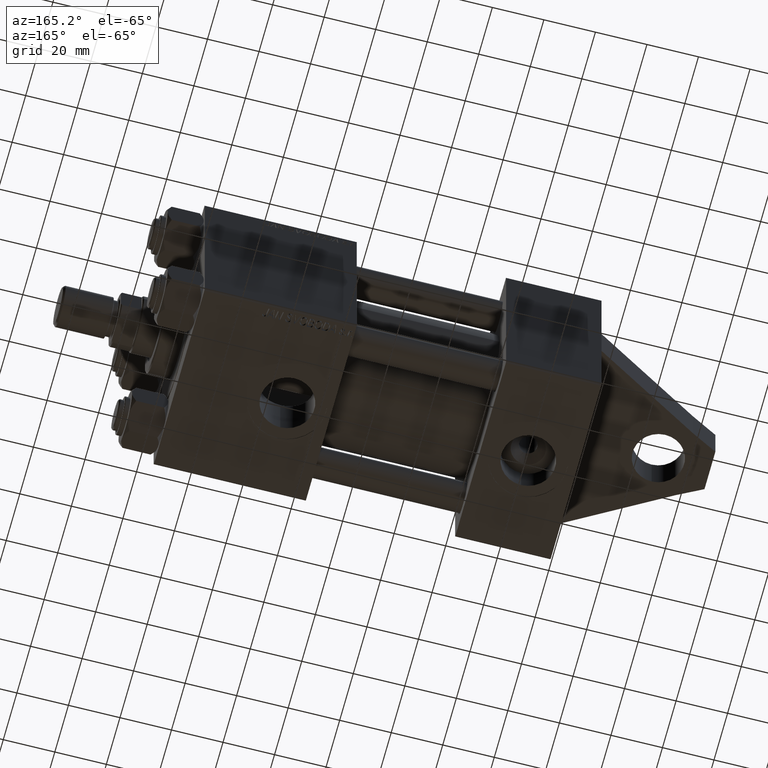
[diagram: clean part render]
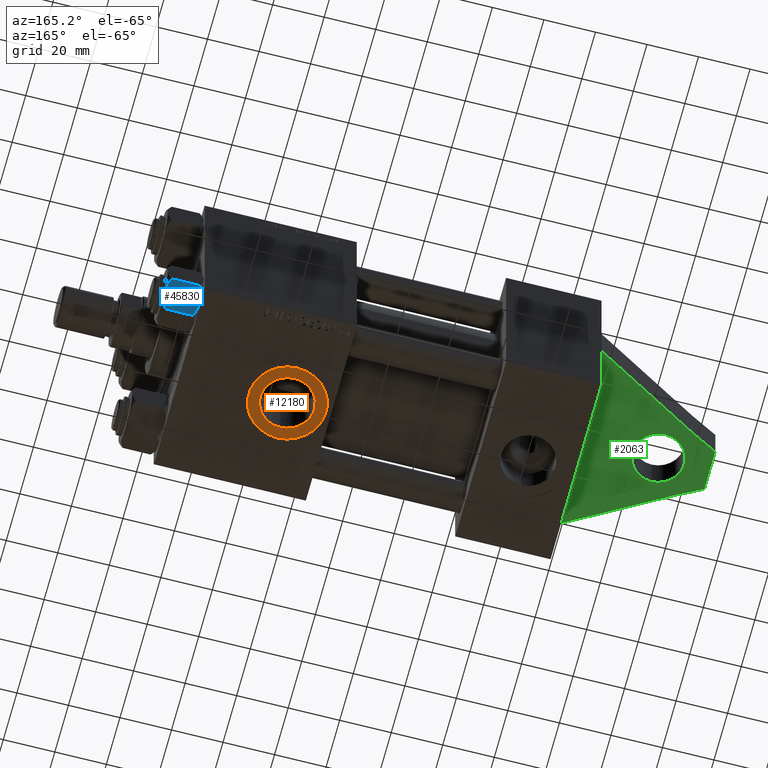
[diagram: same view with three faces highlighted in distinct colors, each labeled with its STEP entity id]
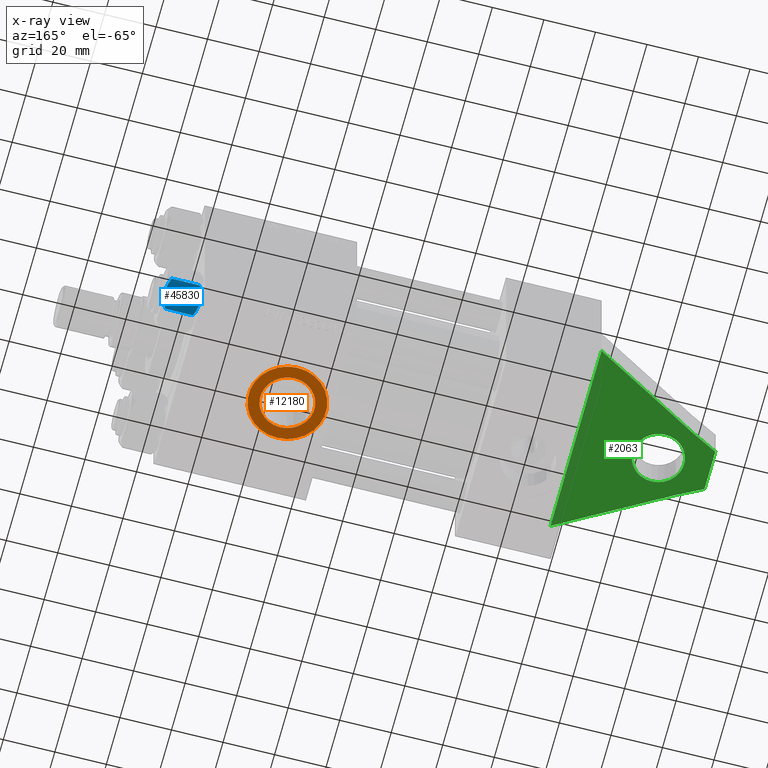
[diagram: x-ray of the same camera — body ghosted, the three highlighted faces saturated]
A machine part, auxiliary view with three faces highlighted in distinct colors.
The next image is the same camera in x-ray (body ghosted, the three faces saturated) — at least one of them is partly hidden behind the body in this view.
Their STEP definitions:

[orange] entity #12180 — the highlighted planar face has unit normal (-0, 0, -1).
#457 = FACE_OUTER_BOUND ( 'NONE', #38729, .T. ) ;
#1296 = CARTESIAN_POINT ( 'NONE',  ( 112.0000000000000000, -37.29999999999999716, 3.486794186713383443E-15 ) ) ;
#2344 = DIRECTION ( 'NONE',  ( 0.000000000000000000, 0.000000000000000000, -1.000000000000000000 ) ) ;
#4085 = CIRCLE ( 'NONE', #20611, 15.00000000000001243 ) ;
#7934 = DIRECTION ( 'NONE',  ( 0.000000000000000000, 0.000000000000000000, -1.000000000000000000 ) ) ;
#8220 = DIRECTION ( 'NONE',  ( 0.000000000000000000, -1.000000000000000000, -8.673617379884036705E-17 ) ) ;
#9294 = DIRECTION ( 'NONE',  ( 0.000000000000000000, -1.000000000000000000, -8.673617379884036705E-17 ) ) ;
#12180 = ADVANCED_FACE ( 'NONE', ( #15490, #457 ), #21868, .T. ) ;
#12237 = DIRECTION ( 'NONE',  ( 0.000000000000000000, -1.000000000000000000, -8.673617379884036705E-17 ) ) ;
#13287 = EDGE_CURVE ( 'NONE', #25275, #17763, #14147, .T. ) ;
#14147 = CIRCLE ( 'NONE', #46398, 10.48000000000000043 ) ;
#15490 = FACE_BOUND ( 'NONE', #20325, .T. ) ;
#17261 = CIRCLE ( 'NONE', #42031, 10.48000000000000043 ) ;
#17763 = VERTEX_POINT ( 'NONE', #26385 ) ;
#18099 = DIRECTION ( 'NONE',  ( 0.000000000000000000, 8.673617379884036705E-17, -1.000000000000000000 ) ) ;
#18683 = CARTESIAN_POINT ( 'NONE',  ( 112.0000000000000000, -37.29999999999999716, 15.00000000000001421 ) ) ;
#18794 = CARTESIAN_POINT ( 'NONE',  ( 112.0000000000000000, -37.29999999999999716, 3.486794186713383443E-15 ) ) ;
#20324 = ORIENTED_EDGE ( 'NONE', *, *, #26542, .F. ) ;
#20325 = EDGE_LOOP ( 'NONE', ( #40205, #20324 ) ) ;
#20611 = AXIS2_PLACEMENT_3D ( 'NONE', #24536, #38403, #41940 ) ;
#21868 = PLANE ( 'NONE',  #23851 ) ;
#23176 = DIRECTION ( 'NONE',  ( 0.000000000000000000, 0.000000000000000000, -1.000000000000000000 ) ) ;
#23851 = AXIS2_PLACEMENT_3D ( 'NONE', #18794, #8220, #18099 ) ;
#23915 = CARTESIAN_POINT ( 'NONE',  ( 112.0000000000000000, -37.29999999999999716, -10.47999999999999687 ) ) ;
#24536 = CARTESIAN_POINT ( 'NONE',  ( 112.0000000000000000, -37.29999999999999716, 3.486794186713383443E-15 ) ) ;
#25275 = VERTEX_POINT ( 'NONE', #23915 ) ;
#25791 = EDGE_CURVE ( 'NONE', #44048, #34156, #46484, .T. ) ;
#26385 = CARTESIAN_POINT ( 'NONE',  ( 112.0000000000000000, -37.29999999999999716, 10.48000000000000398 ) ) ;
#26542 = EDGE_CURVE ( 'NONE', #17763, #25275, #17261, .T. ) ;
#32011 = CARTESIAN_POINT ( 'NONE',  ( 112.0000000000000000, -37.29999999999999716, -15.00000000000000888 ) ) ;
#34156 = VERTEX_POINT ( 'NONE', #32011 ) ;
#34327 = CARTESIAN_POINT ( 'NONE',  ( 112.0000000000000000, -37.29999999999999716, 3.486794186713383443E-15 ) ) ;
#34467 = AXIS2_PLACEMENT_3D ( 'NONE', #34327, #12237, #2344 ) ;
#35798 = ORIENTED_EDGE ( 'NONE', *, *, #42591, .T. ) ;
#36758 = ORIENTED_EDGE ( 'NONE', *, *, #25791, .T. ) ;
#38403 = DIRECTION ( 'NONE',  ( 0.000000000000000000, -1.000000000000000000, -8.673617379884036705E-17 ) ) ;
#38729 = EDGE_LOOP ( 'NONE', ( #35798, #36758 ) ) ;
#40205 = ORIENTED_EDGE ( 'NONE', *, *, #13287, .F. ) ;
#40596 = DIRECTION ( 'NONE',  ( 0.000000000000000000, -1.000000000000000000, -8.673617379884036705E-17 ) ) ;
#41940 = DIRECTION ( 'NONE',  ( 0.000000000000000000, 0.000000000000000000, -1.000000000000000000 ) ) ;
#42031 = AXIS2_PLACEMENT_3D ( 'NONE', #1296, #9294, #23176 ) ;
#42591 = EDGE_CURVE ( 'NONE', #34156, #44048, #4085, .T. ) ;
#44048 = VERTEX_POINT ( 'NONE', #18683 ) ;
#44125 = CARTESIAN_POINT ( 'NONE',  ( 112.0000000000000000, -37.29999999999999716, 3.486794186713383443E-15 ) ) ;
#46398 = AXIS2_PLACEMENT_3D ( 'NONE', #44125, #40596, #7934 ) ;
#46484 = CIRCLE ( 'NONE', #34467, 15.00000000000001243 ) ;

[blue] entity #45830 — the highlighted planar face has unit normal (-0, -0.5, 0.866).
#671 = VERTEX_POINT ( 'NONE', #12680 ) ;
#3010 = VERTEX_POINT ( 'NONE', #19129 ) ;
#3947 = DIRECTION ( 'NONE',  ( -0.000000000000000000, -0.000000000000000000, 1.000000000000000000 ) ) ;
#4074 = CARTESIAN_POINT ( 'NONE',  ( 8.715000000000001634, -5.031607595987590997, 0.000000000000000000 ) ) ;
#5538 = CARTESIAN_POINT ( 'NONE',  ( 8.209704053696569304, -5.906805847843729751, -14.00000000000000711 ) ) ;
#5619 = CARTESIAN_POINT ( 'NONE',  ( 9.974696630283194310, -2.849749030213795997, -13.69973261901326289 ) ) ;
#8560 = VERTEX_POINT ( 'NONE', #24852 ) ;
#10515 = CARTESIAN_POINT ( 'NONE',  ( 8.715000000000001634, -5.031607595987590997, 0.000000000000000000 ) ) ;
#10531 = ORIENTED_EDGE ( 'NONE', *, *, #36181, .F. ) ;
#11138 = CARTESIAN_POINT ( 'NONE',  ( 9.716999946243698005, -3.296092779912227932, -0.1545239700039841013 ) ) ;
#11498 = ORIENTED_EDGE ( 'NONE', *, *, #15752, .T. ) ;
#12249 = EDGE_CURVE ( 'NONE', #3010, #38906, #45305, .T. ) ;
#12680 = CARTESIAN_POINT ( 'NONE',  ( 8.715000000000001634, -5.031607595987590997, 0.000000000000000000 ) ) ;
#12734 = VECTOR ( 'NONE', #3947, 1000.000000000000000 ) ;
#13124 = CARTESIAN_POINT ( 'NONE',  ( 11.62000000000000099, -1.795242522838921761E-15, -12.44321519197518455 ) ) ;
#13338 = B_SPLINE_CURVE_WITH_KNOTS ( 'NONE', 3,
 ( #4074, #44261, #11138, #25484, #18415, #39814 ),
 .UNSPECIFIED., .F., .F.,
 ( 4, 2, 4 ),
 ( 0.006022845781655586372, 0.009013049135303633289, 0.01200325248895168020 ),
 .UNSPECIFIED. ) ;
#15722 = CARTESIAN_POINT ( 'NONE',  ( 9.729165168613654657, -3.275021996682085490, -13.80960203119266083 ) ) ;
#15752 = EDGE_CURVE ( 'NONE', #3010, #8560, #28799, .T. ) ;
#15948 = CARTESIAN_POINT ( 'NONE',  ( 11.16445427487471775, -0.7890283410877989567, -12.89876091710046424 ) ) ;
#16202 = LINE ( 'NONE', #43214, #12734 ) ;
#16459 = B_SPLINE_CURVE_WITH_KNOTS ( 'NONE', 3,
 ( #45038, #5538, #19873, #23642, #26937, #44800 ),
 .UNSPECIFIED., .F., .F.,
 ( 4, 2, 4 ),
 ( 0.006022845781655588975, 0.009013049135303635023, 0.01200325248895167674 ),
 .UNSPECIFIED. ) ;
#17096 = CARTESIAN_POINT ( 'NONE',  ( 7.700834831386345058, -6.788193195293096949, -0.1903979688073415555 ) ) ;
#17131 = CARTESIAN_POINT ( 'NONE',  ( 5.810000000000000497, -10.06321519197517667, -1.556784808024813671 ) ) ;
#17324 = CARTESIAN_POINT ( 'NONE',  ( 6.265545725125283738, -9.274186850887380373, -1.101239082899531319 ) ) ;
#18415 = CARTESIAN_POINT ( 'NONE',  ( 11.16498164529022574, -0.7881149087337310233, -1.101766453314954264 ) ) ;
#18540 = CARTESIAN_POINT ( 'NONE',  ( 8.715000000000001634, -5.031607595987590997, -14.00000000000000000 ) ) ;
#19129 = CARTESIAN_POINT ( 'NONE',  ( 11.62000000000000099, -1.795242522838921761E-15, -12.44321519197518455 ) ) ;
#19873 = CARTESIAN_POINT ( 'NONE',  ( 7.713000053756304375, -6.767122412062953174, -13.84547602999601601 ) ) ;
#20226 = DIRECTION ( 'NONE',  ( -0.8660254037844385966, 0.5000000000000002220, 0.000000000000000000 ) ) ;
#21764 = DIRECTION ( 'NONE',  ( -0.000000000000000000, -0.000000000000000000, 1.000000000000000000 ) ) ;
#23263 = CARTESIAN_POINT ( 'NONE',  ( 10.69859855102500745, -1.595914123792264050, -13.28585617404753094 ) ) ;
#23442 = VERTEX_POINT ( 'NONE', #17131 ) ;
#23460 = EDGE_CURVE ( 'NONE', #37744, #23442, #16202, .T. ) ;
#23642 = CARTESIAN_POINT ( 'NONE',  ( 6.733375043383497349, -8.463882702393844326, -13.28854452935655139 ) ) ;
#24201 = PLANE ( 'NONE',  #46098 ) ;
#24338 = EDGE_LOOP ( 'NONE', ( #32903, #11498, #45525, #10531, #37735, #36353 ) ) ;
#24852 = CARTESIAN_POINT ( 'NONE',  ( 11.62000000000000099, -1.607967606633101042E-15, -1.556784808024815669 ) ) ;
#25484 = CARTESIAN_POINT ( 'NONE',  ( 10.69662495661650503, -1.599332489581334560, -0.7114554706434500497 ) ) ;
#26778 = CARTESIAN_POINT ( 'NONE',  ( 8.715000000000001634, -5.031607595987590997, -14.00000000000000000 ) ) ;
#26937 = CARTESIAN_POINT ( 'NONE',  ( 6.265018354709775750, -9.275100283241444643, -12.89823354668504507 ) ) ;
#28799 = LINE ( 'NONE', #43140, #36726 ) ;
#30531 = CARTESIAN_POINT ( 'NONE',  ( 9.227666995912104042, -4.143642311704127223, -13.96005881939309212 ) ) ;
#30975 = CARTESIAN_POINT ( 'NONE',  ( 8.202333004087901003, -5.919572880271055659, -0.03994118060690762112 ) ) ;
#31954 = FACE_OUTER_BOUND ( 'NONE', #24338, .T. ) ;
#32903 = ORIENTED_EDGE ( 'NONE', *, *, #12249, .F. ) ;
#34859 = EDGE_CURVE ( 'NONE', #671, #8560, #13338, .T. ) ;
#35194 = CARTESIAN_POINT ( 'NONE',  ( 6.731401448974986934, -8.467301068182914392, -0.7141438259524658383 ) ) ;
#35476 = DIRECTION ( 'NONE',  ( -0.5000000000000001110, -0.8660254037844384856, 0.000000000000000000 ) ) ;
#36181 = EDGE_CURVE ( 'NONE', #23442, #671, #38466, .T. ) ;
#36353 = ORIENTED_EDGE ( 'NONE', *, *, #40231, .F. ) ;
#36726 = VECTOR ( 'NONE', #21764, 1000.000000000000000 ) ;
#37735 = ORIENTED_EDGE ( 'NONE', *, *, #23460, .F. ) ;
#37744 = VERTEX_POINT ( 'NONE', #43069 ) ;
#38254 = CARTESIAN_POINT ( 'NONE',  ( 5.810000000000000497, -10.06321519197517667, -1.556784808024813671 ) ) ;
#38466 = B_SPLINE_CURVE_WITH_KNOTS ( 'NONE', 3,
 ( #38254, #17324, #35194, #38947, #17096, #30975, #46236, #10515 ),
 .UNSPECIFIED., .F., .F.,
 ( 4, 2, 2, 4 ),
 ( 2.544312114902182352E-07, 0.003011550106433538189, 0.004517197944044561847, 0.006022845781655586372 ),
 .UNSPECIFIED. ) ;
#38529 = CARTESIAN_POINT ( 'NONE',  ( 11.62000000000000099, -1.813166800014576593E-15, -14.00000000000000000 ) ) ;
#38906 = VERTEX_POINT ( 'NONE', #18540 ) ;
#38947 = CARTESIAN_POINT ( 'NONE',  ( 7.455303369716810735, -7.213466161761385109, -0.3002673809867383303 ) ) ;
#39814 = CARTESIAN_POINT ( 'NONE',  ( 11.62000000000000099, -1.607967606633101042E-15, -1.556784808024815669 ) ) ;
#40231 = EDGE_CURVE ( 'NONE', #38906, #37744, #16459, .T. ) ;
#41578 = CARTESIAN_POINT ( 'NONE',  ( 8.969430103550385169, -4.590921729663315354, -14.00000000000000533 ) ) ;
#43069 = CARTESIAN_POINT ( 'NONE',  ( 5.810000000000000497, -10.06321519197517667, -12.44321519197518633 ) ) ;
#43140 = CARTESIAN_POINT ( 'NONE',  ( 11.62000000000000099, -1.813166800014576593E-15, -14.00000000000000000 ) ) ;
#43214 = CARTESIAN_POINT ( 'NONE',  ( 5.810000000000000497, -10.06321519197517667, -14.00000000000000000 ) ) ;
#44261 = CARTESIAN_POINT ( 'NONE',  ( 9.220295946303432189, -4.156409344131454020, 1.753358200816401307E-15 ) ) ;
#44800 = CARTESIAN_POINT ( 'NONE',  ( 5.810000000000000497, -10.06321519197517667, -12.44321519197518633 ) ) ;
#45038 = CARTESIAN_POINT ( 'NONE',  ( 8.715000000000001634, -5.031607595987590997, -14.00000000000000000 ) ) ;
#45305 = B_SPLINE_CURVE_WITH_KNOTS ( 'NONE', 3,
 ( #13124, #15948, #23263, #5619, #15722, #30531, #41578, #26778 ),
 .UNSPECIFIED., .F., .F.,
 ( 4, 2, 2, 4 ),
 ( 2.544312114905217906E-07, 0.003011550106433539490, 0.004517197944044564449, 0.006022845781655588975 ),
 .UNSPECIFIED. ) ;
#45525 = ORIENTED_EDGE ( 'NONE', *, *, #34859, .F. ) ;
#45830 = ADVANCED_FACE ( 'NONE', ( #31954 ), #24201, .F. ) ;
#46098 = AXIS2_PLACEMENT_3D ( 'NONE', #38529, #20226, #35476 ) ;
#46236 = CARTESIAN_POINT ( 'NONE',  ( 8.460569896449618099, -5.472293462311865753, 1.694065894508600678E-15 ) ) ;

[green] entity #2063 — the highlighted planar face has unit normal (-0, 0, 1).
#299 = LINE ( 'NONE', #25700, #31137 ) ;
#544 = EDGE_CURVE ( 'NONE', #11975, #21830, #299, .T. ) ;
#948 = LINE ( 'NONE', #8714, #10962 ) ;
#2063 = ADVANCED_FACE ( 'NONE', ( #30222, #23193 ), #5317, .F. ) ;
#3044 = DIRECTION ( 'NONE',  ( 0.000000000000000000, 0.000000000000000000, -1.000000000000000000 ) ) ;
#5317 = PLANE ( 'NONE',  #40194 ) ;
#5784 = DIRECTION ( 'NONE',  ( -0.000000000000000000, 1.000000000000000000, 0.000000000000000000 ) ) ;
#5962 = CARTESIAN_POINT ( 'NONE',  ( 0.000000000000000000, -7.500000000000000000, 37.49999999999999289 ) ) ;
#6118 = LINE ( 'NONE', #6815, #44238 ) ;
#6815 = CARTESIAN_POINT ( 'NONE',  ( 0.000000000000000000, -7.500000000000000000, 37.49999999999999289 ) ) ;
#7346 = EDGE_CURVE ( 'NONE', #18905, #44071, #948, .T. ) ;
#8676 = EDGE_CURVE ( 'NONE', #23361, #14671, #41771, .T. ) ;
#8714 = CARTESIAN_POINT ( 'NONE',  ( -52.00000000000000711, -7.500000000000000000, -8.000000000000000000 ) ) ;
#10516 = CARTESIAN_POINT ( 'NONE',  ( -32.00000000000000000, -7.500000000000000000, 0.000000000000000000 ) ) ;
#10962 = VECTOR ( 'NONE', #40907, 1000.000000000000227 ) ;
#11497 = DIRECTION ( 'NONE',  ( 0.000000000000000000, 1.000000000000000000, 0.000000000000000000 ) ) ;
#11975 = VERTEX_POINT ( 'NONE', #31052 ) ;
#12243 = EDGE_LOOP ( 'NONE', ( #27812, #31800 ) ) ;
#13337 = CIRCLE ( 'NONE', #41125, 10.00000000000000000 ) ;
#13981 = AXIS2_PLACEMENT_3D ( 'NONE', #10516, #20867, #42944 ) ;
#14642 = DIRECTION ( 'NONE',  ( 0.8660254037844363761, 0.000000000000000000, 0.5000000000000041078 ) ) ;
#14671 = VERTEX_POINT ( 'NONE', #14929 ) ;
#14929 = CARTESIAN_POINT ( 'NONE',  ( -32.00000000000000000, -7.500000000000000000, 10.00000000000000000 ) ) ;
#16313 = EDGE_LOOP ( 'NONE', ( #29317, #34735, #33878, #39894, #32385, #44593 ) ) ;
#17365 = DIRECTION ( 'NONE',  ( 0.000000000000000000, 0.000000000000000000, 1.000000000000000000 ) ) ;
#18905 = VERTEX_POINT ( 'NONE', #44170 ) ;
#19016 = EDGE_CURVE ( 'NONE', #14671, #23361, #13337, .T. ) ;
#20867 = DIRECTION ( 'NONE',  ( 0.000000000000000000, 1.000000000000000000, 0.000000000000000000 ) ) ;
#20986 = VERTEX_POINT ( 'NONE', #33119 ) ;
#21830 = VERTEX_POINT ( 'NONE', #5962 ) ;
#22241 = DIRECTION ( 'NONE',  ( -0.8660254037844362651, -0.000000000000000000, 0.5000000000000042188 ) ) ;
#22347 = CARTESIAN_POINT ( 'NONE',  ( -32.00000000000000000, -7.500000000000000000, -10.00000000000000000 ) ) ;
#23193 = FACE_OUTER_BOUND ( 'NONE', #16313, .T. ) ;
#23361 = VERTEX_POINT ( 'NONE', #22347 ) ;
#23634 = EDGE_CURVE ( 'NONE', #44071, #20986, #35686, .T. ) ;
#24684 = VECTOR ( 'NONE', #22241, 1000.000000000000114 ) ;
#25385 = EDGE_CURVE ( 'NONE', #38804, #18905, #39860, .T. ) ;
#25700 = CARTESIAN_POINT ( 'NONE',  ( -42.00000000000000000, -7.500000000000000000, 13.25128869403544485 ) ) ;
#26028 = EDGE_CURVE ( 'NONE', #21830, #38804, #6118, .T. ) ;
#27519 = CARTESIAN_POINT ( 'NONE',  ( 0.000000000000000000, -7.500000000000000000, -37.50000000000000711 ) ) ;
#27812 = ORIENTED_EDGE ( 'NONE', *, *, #19016, .T. ) ;
#29317 = ORIENTED_EDGE ( 'NONE', *, *, #41816, .F. ) ;
#29732 = CARTESIAN_POINT ( 'NONE',  ( -52.00000000000000711, -7.500000000000000000, -8.000000000000000000 ) ) ;
#30222 = FACE_BOUND ( 'NONE', #12243, .T. ) ;
#30462 = CARTESIAN_POINT ( 'NONE',  ( 0.000000000000000000, -7.500000000000000000, 0.000000000000000000 ) ) ;
#31052 = CARTESIAN_POINT ( 'NONE',  ( -42.00000000000000000, -7.500000000000000000, 13.25128869403544485 ) ) ;
#31137 = VECTOR ( 'NONE', #14642, 1000.000000000000000 ) ;
#31800 = ORIENTED_EDGE ( 'NONE', *, *, #8676, .T. ) ;
#32385 = ORIENTED_EDGE ( 'NONE', *, *, #26028, .F. ) ;
#33033 = CARTESIAN_POINT ( 'NONE',  ( -42.00000000000000000, -7.500000000000000000, -13.25128869403544485 ) ) ;
#33119 = CARTESIAN_POINT ( 'NONE',  ( -52.00000000000000711, -7.500000000000000000, 8.000000000000000000 ) ) ;
#33878 = ORIENTED_EDGE ( 'NONE', *, *, #7346, .F. ) ;
#34300 = CARTESIAN_POINT ( 'NONE',  ( -52.00000000000000711, -7.500000000000000000, 8.000000000000000000 ) ) ;
#34735 = ORIENTED_EDGE ( 'NONE', *, *, #23634, .F. ) ;
#35686 = LINE ( 'NONE', #35920, #46420 ) ;
#35920 = CARTESIAN_POINT ( 'NONE',  ( -52.00000000000000711, -7.500000000000000000, -8.000000000000000000 ) ) ;
#37338 = CARTESIAN_POINT ( 'NONE',  ( -32.00000000000000000, -7.500000000000000000, 0.000000000000000000 ) ) ;
#38804 = VERTEX_POINT ( 'NONE', #27519 ) ;
#39860 = LINE ( 'NONE', #33033, #24684 ) ;
#39894 = ORIENTED_EDGE ( 'NONE', *, *, #25385, .F. ) ;
#40181 = DIRECTION ( 'NONE',  ( 0.000000000000000000, 0.000000000000000000, 1.000000000000000000 ) ) ;
#40194 = AXIS2_PLACEMENT_3D ( 'NONE', #30462, #5784, #44806 ) ;
#40907 = DIRECTION ( 'NONE',  ( -0.8853509411893986103, -0.000000000000000000, 0.4649233387721528055 ) ) ;
#41125 = AXIS2_PLACEMENT_3D ( 'NONE', #37338, #11497, #40181 ) ;
#41771 = CIRCLE ( 'NONE', #13981, 10.00000000000000000 ) ;
#41816 = EDGE_CURVE ( 'NONE', #20986, #11975, #44420, .T. ) ;
#42944 = DIRECTION ( 'NONE',  ( 0.000000000000000000, 0.000000000000000000, 1.000000000000000000 ) ) ;
#44071 = VERTEX_POINT ( 'NONE', #29732 ) ;
#44170 = CARTESIAN_POINT ( 'NONE',  ( -42.00000000000000000, -7.500000000000000000, -13.25128869403544485 ) ) ;
#44238 = VECTOR ( 'NONE', #3044, 1000.000000000000000 ) ;
#44420 = LINE ( 'NONE', #34300, #46141 ) ;
#44593 = ORIENTED_EDGE ( 'NONE', *, *, #544, .F. ) ;
#44806 = DIRECTION ( 'NONE',  ( 0.000000000000000000, -0.000000000000000000, 1.000000000000000000 ) ) ;
#45120 = DIRECTION ( 'NONE',  ( 0.8853509411893986103, 0.000000000000000000, 0.4649233387721528055 ) ) ;
#46141 = VECTOR ( 'NONE', #45120, 1000.000000000000227 ) ;
#46420 = VECTOR ( 'NONE', #17365, 1000.000000000000000 ) ;